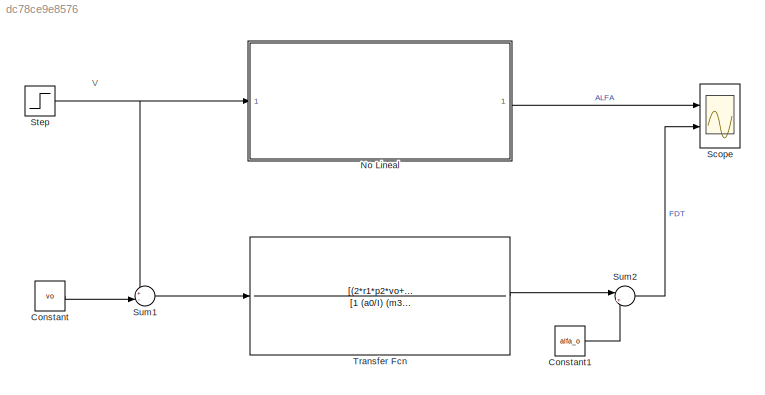
MODEL slx_dc78ce9e8576
KIND model
CONFIG AbsTol = auto
CONFIG EnableMultiTasking = off
CONFIG FixedStep = auto
CONFIG MaxStep = auto
CONFIG MinStep = auto
CONFIG RelTol = 1e-3
CONFIG SampleTimeConstraint = Unconstrained
CONFIG SolverName = VariableStepAuto
CONFIG StartTime = 0.0
CONFIG StopTime = 10
BLOCK [Constant] Constant
  Value = vo
BLOCK [Constant] Constant1
  Value = alfa_o
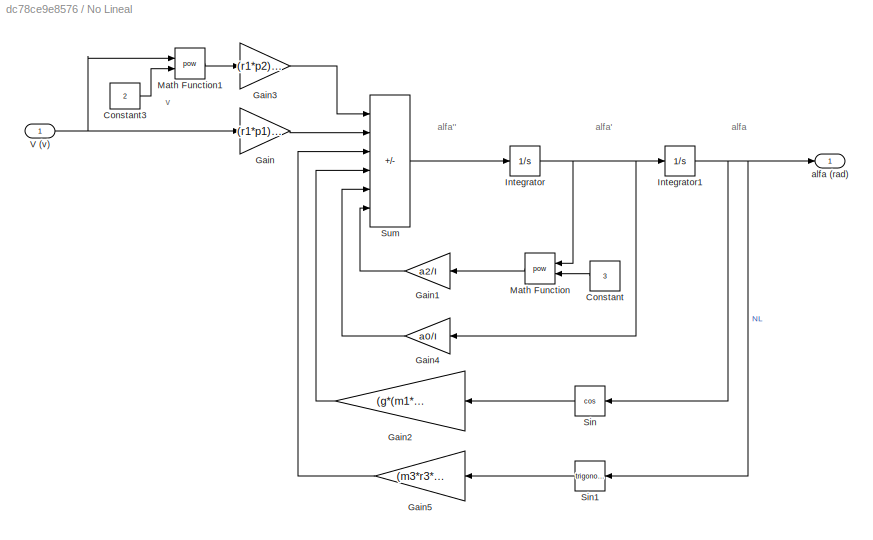
BLOCK [SubSystem] No Lineal
  Ports = [1, 1]
  RequestExecContextInheritance = off
BLOCK [Constant] No Lineal/Constant
  Value = 3
BLOCK [Constant] No Lineal/Constant3
  Value = 2
BLOCK [Gain] No Lineal/Gain
  Gain = (r1*p1)/I
BLOCK [Gain] No Lineal/Gain1
  Gain = a2/I
BLOCK [Gain] No Lineal/Gain2
  Gain = (g*(m1*r1-m2*r2))/I
BLOCK [Gain] No Lineal/Gain3
  Gain = (r1*p2)/I
BLOCK [Gain] No Lineal/Gain4
  Gain = a0/I
BLOCK [Gain] No Lineal/Gain5
  Gain = (m3*r3*g)/I
BLOCK [Integrator] No Lineal/Integrator
  InitialCondition = alfa_o
  Ports = [1, 1]
BLOCK [Integrator] No Lineal/Integrator1
  InitialCondition = alfa_o
  Ports = [1, 1]
BLOCK [Math] No Lineal/Math Function
  Operator = pow
  Ports = [2, 1]
BLOCK [Math] No Lineal/Math Function1
  Operator = pow
  Ports = [2, 1]
BLOCK [Trigonometry] No Lineal/Sin
  Operator = cos
  Ports = [1, 1]
BLOCK [Trigonometry] No Lineal/Sin1
  Ports = [1, 1]
BLOCK [Sum] No Lineal/Sum
  IconShape = rectangular
  Inputs = ++----
  Ports = [6, 1]
BLOCK [Inport] No Lineal/V (v)
BLOCK [Outport] No Lineal/alfa (rad)
BLOCK [Scope] Scope
  Floating = off
  NumInputPorts = 2
  Ports = [2]
  ScopeSpecificationString = Simulink.scopes.TimeScopeBlockCfg('CurrentConfiguration', extmgr.ConfigurationSet(extmgr.Configuration('Core','General UI',true),extmgr.Configuration('Core','Source UI',true),extmgr.Configuration('Sources','WiredSimulink',true),extmgr.Configuration('Visuals','Time Domain',true,'SerializedDisplays',{struct('MinYLimReal','-0.01115','MaxYLimReal','0.10036','YLabelReal','','MinYLimMag','0.00000','MaxY...<+1451ch>
BLOCK [Step] Step
  After = vo+0.25
  Before = vo
  SampleTime = 0
  Time = 0
BLOCK [Sum] Sum1
  Inputs = +-|
  NameLocation = top
  Ports = [2, 1]
BLOCK [Sum] Sum2
  Inputs = |++
  Ports = [2, 1]
BLOCK [TransferFcn] Transfer Fcn
  Denominator = [1 (a0/I) (m3*r3*g)/I]
  Numerator = [(2*r1*p2*vo+r1*p1)/I]
ANNOTATION (root): V
ANNOTATION No Lineal: alfa''
ANNOTATION No Lineal: alfa'
ANNOTATION No Lineal: alfa
ANNOTATION No Lineal: v
LINE Constant1:1 -> Sum2:2
LINE Constant:1 -> Sum1:2
LINE No Lineal/Constant3:1 -> No Lineal/Math Function1:2
LINE No Lineal/Constant:1 -> No Lineal/Math Function:2
LINE No Lineal/Gain1:1 -> No Lineal/Sum:6
LINE No Lineal/Gain2:1 -> No Lineal/Sum:4
LINE No Lineal/Gain3:1 -> No Lineal/Sum:1
LINE No Lineal/Gain4:1 -> No Lineal/Sum:5
LINE No Lineal/Gain5:1 -> No Lineal/Sum:3
LINE No Lineal/Gain:1 -> No Lineal/Sum:2
NET No Lineal/Integrator1:1 -> No Lineal/Sin1:1, No Lineal/Sin:1, No Lineal/alfa (rad):1
NET No Lineal/Integrator:1 -> No Lineal/Gain4:1, No Lineal/Integrator1:1, No Lineal/Math Function:1
LINE No Lineal/Math Function1:1 -> No Lineal/Gain3:1
LINE No Lineal/Math Function:1 -> No Lineal/Gain1:1
LINE No Lineal/Sin1:1 -> No Lineal/Gain5:1
LINE No Lineal/Sin:1 -> No Lineal/Gain2:1
LINE No Lineal/Sum:1 -> No Lineal/Integrator:1
NET No Lineal/V (v):1 -> No Lineal/Gain:1, No Lineal/Math Function1:1
LINE No Lineal:1 -> Scope:1
NET Step:1 -> No Lineal:1, Sum1:1
LINE Sum1:1 -> Transfer Fcn:1
LINE Sum2:1 -> Scope:2
LINE Transfer Fcn:1 -> Sum2:1
note: NET lines group one-source signal fan-out (src -> all destinations, sorted); 1:1 wires keep LINE
